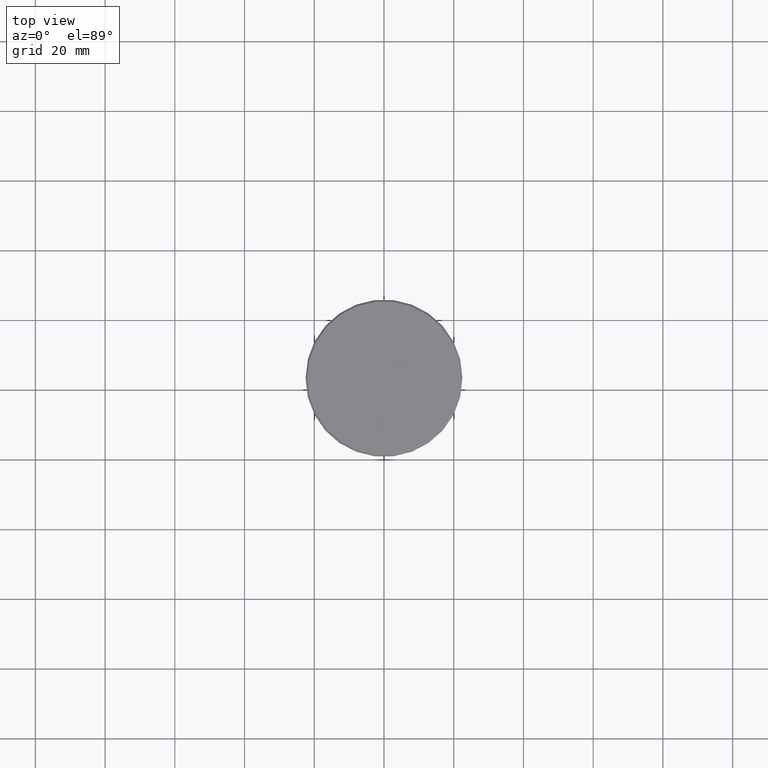
[diagram: clean part render]
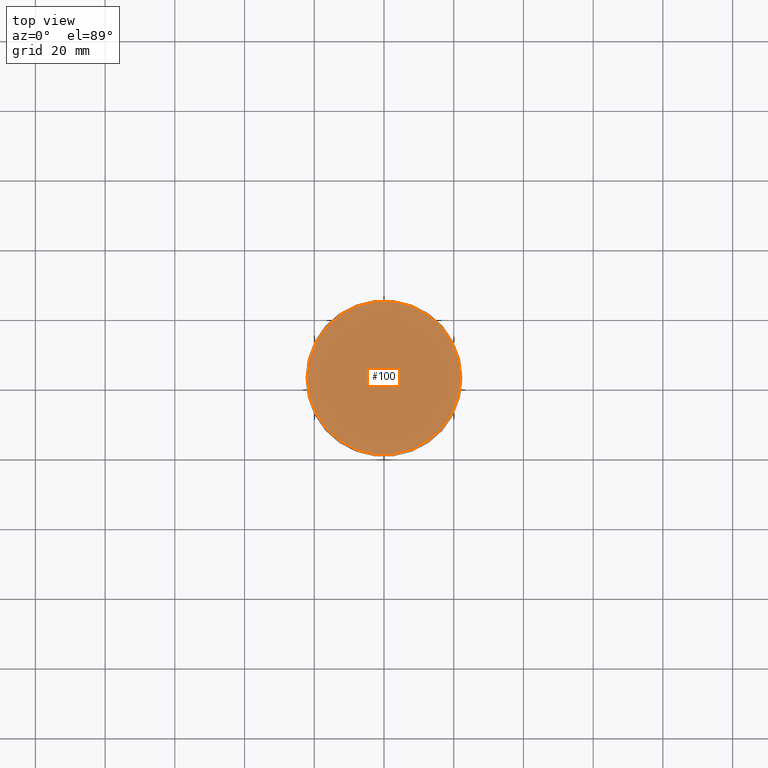
[diagram: same view with one face highlighted and labeled with its STEP entity id]
A machine part, top view. The second image highlights one B-rep face of the part: STEP entity #100.
In plain terms, the highlighted planar face has unit normal (0, -0, 1).
Its self-contained STEP definition (entity closure, byte-faithful):
#47 = VERTEX_POINT ( 'NONE', #897 ) ;
#100 = ADVANCED_FACE ( 'NONE', ( #630 ), #697, .T. ) ;
#106 = EDGE_LOOP ( 'NONE', ( #873, #258 ) ) ;
#226 = VERTEX_POINT ( 'NONE', #377 ) ;
#257 = DIRECTION ( 'NONE',  ( 0.000000000000000000, -0.000000000000000000, 1.000000000000000000 ) ) ;
#258 = ORIENTED_EDGE ( 'NONE', *, *, #753, .T. ) ;
#319 = DIRECTION ( 'NONE',  ( 1.000000000000000000, 0.000000000000000000, 0.000000000000000000 ) ) ;
#341 = AXIS2_PLACEMENT_3D ( 'NONE', #1053, #952, #659 ) ;
#377 = CARTESIAN_POINT ( 'NONE',  ( 21.99999999999993605, 2.724839128102857046E-15, 0.000000000000000000 ) ) ;
#417 = EDGE_CURVE ( 'NONE', #47, #226, #508, .T. ) ;
#508 = CIRCLE ( 'NONE', #566, 21.99999999999993605 ) ;
#566 = AXIS2_PLACEMENT_3D ( 'NONE', #584, #779, #319 ) ;
#584 = CARTESIAN_POINT ( 'NONE',  ( 0.000000000000000000, 0.000000000000000000, 0.000000000000000000 ) ) ;
#630 = FACE_OUTER_BOUND ( 'NONE', #106, .T. ) ;
#659 = DIRECTION ( 'NONE',  ( 1.000000000000000000, 0.000000000000000000, 0.000000000000000000 ) ) ;
#697 = PLANE ( 'NONE',  #1039 ) ;
#753 = EDGE_CURVE ( 'NONE', #226, #47, #866, .T. ) ;
#779 = DIRECTION ( 'NONE',  ( -0.000000000000000000, -0.000000000000000000, 1.000000000000000000 ) ) ;
#807 = DIRECTION ( 'NONE',  ( 1.000000000000000000, 0.000000000000000000, 0.000000000000000000 ) ) ;
#866 = CIRCLE ( 'NONE', #341, 21.99999999999993605 ) ;
#873 = ORIENTED_EDGE ( 'NONE', *, *, #417, .T. ) ;
#897 = CARTESIAN_POINT ( 'NONE',  ( -21.99999999999993605, 0.000000000000000000, 0.000000000000000000 ) ) ;
#952 = DIRECTION ( 'NONE',  ( -0.000000000000000000, -0.000000000000000000, 1.000000000000000000 ) ) ;
#992 = CARTESIAN_POINT ( 'NONE',  ( 0.000000000000000000, 0.000000000000000000, 0.000000000000000000 ) ) ;
#1039 = AXIS2_PLACEMENT_3D ( 'NONE', #992, #257, #807 ) ;
#1053 = CARTESIAN_POINT ( 'NONE',  ( 0.000000000000000000, 0.000000000000000000, 0.000000000000000000 ) ) ;